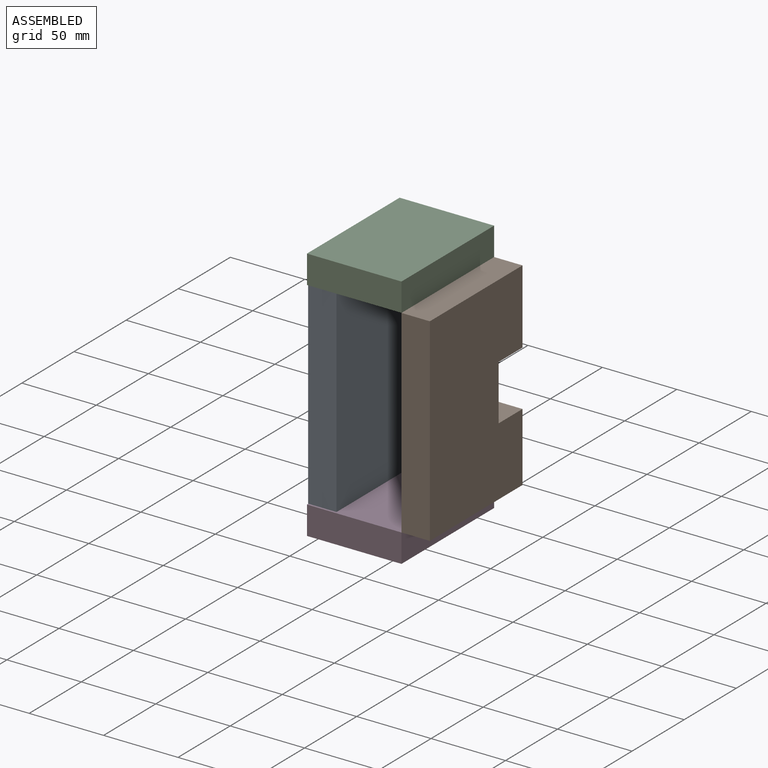
[diagram: assembled view]
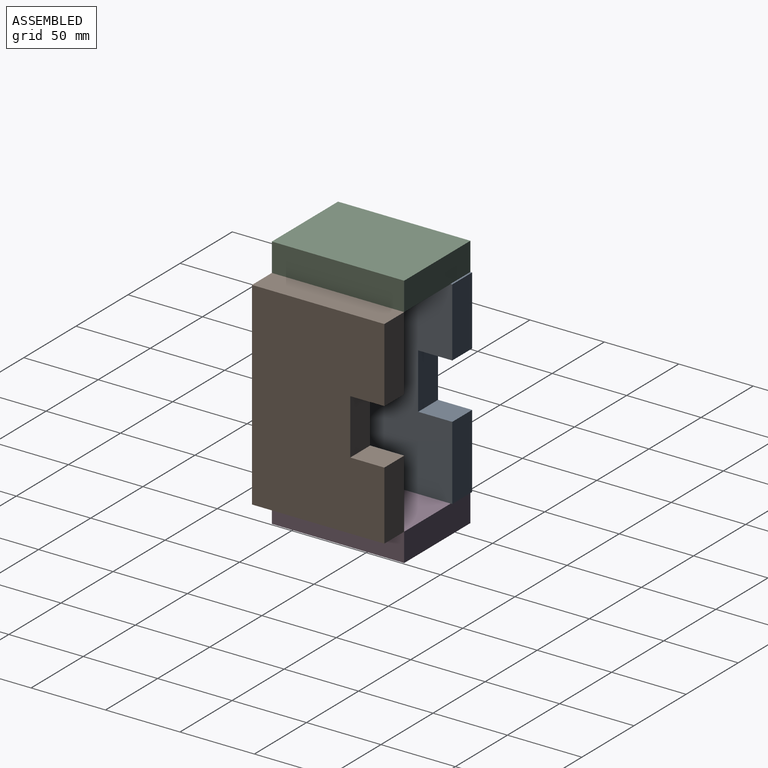
[diagram: assembled view, second angle]
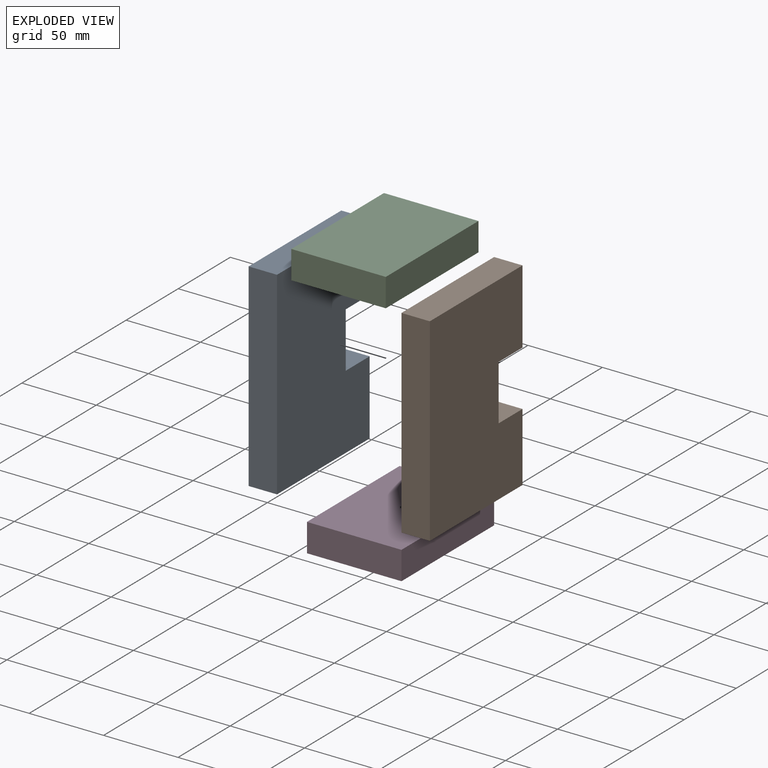
[diagram: exploded view]
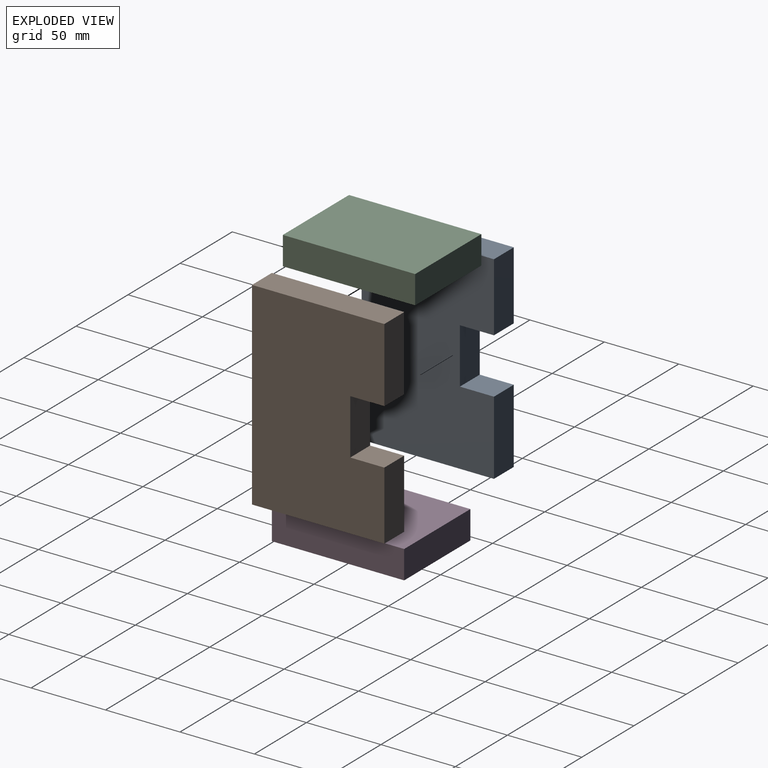
[diagram: exploded view, second angle]
ASSEMBLY  parts=4 mates=6
PART A: 10 faces, bbox 133.4x19.1x88.9 mm
  f0: plane 37.29x19.05mm, normal (0,0,1), area 710.3mm2, adj f1,f7,f8,f9
  f1: plane 22.91x19.05mm, normal (1,0,0), area 436.4mm2, adj f0,f2,f8,f9
  f2: plane 46.17x19.05mm, normal (0,0,1), area 879.5mm2, adj f1,f3,f8,f9
  f3: plane 88.9x19.05mm, normal (-1,0,0), area 1693.5mm2, adj f2,f4,f8,f9
  f4: plane 133.35x19.05mm, normal (0,0,-1), area 2540.3mm2, adj f3,f5,f8,f9
  f5: plane 88.9x19.05mm, normal (1,0,0), area 1693.5mm2, adj f4,f6,f8,f9
  f6: plane 49.9x19.05mm, normal (0,0,1), area 950.5mm2, adj f5,f7,f8,f9
  f7: plane 22.91x19.05mm, normal (-1,0,0), area 436.4mm2, adj f0,f6,f8,f9
  f8: plane 133.35x88.9mm, normal (0,-1,0), area 11000.7mm2, adj f0,f1,f2,f3,f4,f5,f6,f7
  f9: plane 133.35x88.9mm, normal (0,1,0), area 11000.7mm2, adj f0,f1,f2,f3,f4,f5,f6,f7
PART B: same geometry as A
PART C: 6 faces, bbox 63.5x19.1x88.9 mm
  f0: plane 63.5x19.05mm, normal (0,0,1), area 1209.7mm2, adj f1,f3,f4,f5
  f1: plane 88.9x19.05mm, normal (-1,0,0), area 1693.5mm2, adj f0,f2,f4,f5
  f2: plane 63.5x19.05mm, normal (0,0,-1), area 1209.7mm2, adj f1,f3,f4,f5
  f3: plane 88.9x19.05mm, normal (1,0,0), area 1693.5mm2, adj f0,f2,f4,f5
  f4: plane 88.9x63.5mm, normal (0,-1,0), area 5645.2mm2, adj f0,f1,f2,f3
  f5: plane 88.9x63.5mm, normal (0,1,0), area 5645.2mm2, adj f0,f1,f2,f3
PART D: same geometry as C
PLACE A rot(axis=(-0.58,0.58,0.58),120deg) t=(309.57,45.19,320.63)mm
PLACE B rot(axis=(-0.58,-0.58,-0.58),120deg) t=(392.12,44.01,260.44)mm
PLACE C rot(axis=(-1,0,0),90deg) t=(357.31,46.8,357.15)mm
PLACE D rot(axis=(0,0.71,0.71),180deg) t=(325.33,46.8,223.8)mm
MATE planar B.f8 <-> C.f3  axis (-1,0,0) through (373.07,44.76,290.62)mm
MATE planar D.f5 <-> B.f3  axis (0,0,1) through (341.32,47.32,223.8)mm
MATE planar D.f4 <-> B.f3  axis (0,0,-1) through (341.32,47.32,204.75)mm
MATE planar C.f5 <-> B.f5  axis (0,0,-1) through (341.32,47.32,357.15)mm
MATE planar A.f9 <-> D.f3  axis (-1,0,0) through (309.57,45.94,290.45)mm
MATE planar B.f8 <-> D.f1  axis (-1,0,0) through (373.07,44.76,290.62)mm
